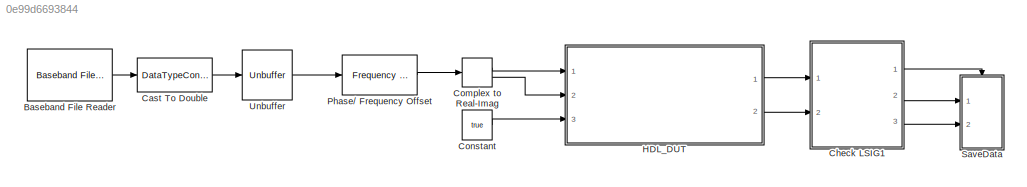
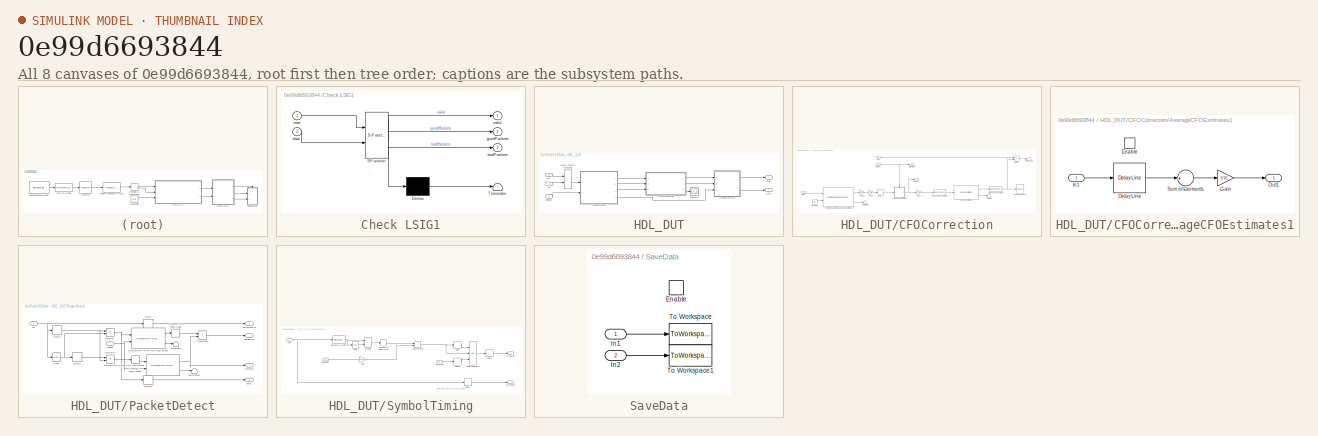
[diagram: thumbnail index - all 8 canvases of the model, root first then tree order]
MODEL slx_0e99d6693844
KIND model
CONFIG AbsTol = auto
CONFIG EnableMultiTasking = off
CONFIG FixedStep = auto
CONFIG InitFcn = Fs = 20e6;\nres = 1;\nSFDR = 100;\nN = ceil(log2(Fs/res));\n%trueRes = Fs/(2^N);\n%phaseInc = round(Fc*2^N/Fs);\nQAB = round((SFDR-12)/6);\nDither = N - QAB;\n\n%% LLTF\na = load('lltf.mat');\nlltfFlip = conj(flipud(a.LLTF(:, 1)));\n\nlltfFlip = lltfFlip./(max(abs(lltfFlip))) .* 2^0;\n\n
CONFIG MaxStep = auto
CONFIG MinStep = auto
CONFIG RelTol = 1e-3
CONFIG SampleTimeConstraint = Unconstrained
CONFIG Solver = FixedStepDiscrete
CONFIG SolverName = FixedStepDiscrete
CONFIG StartTime = 0.0
CONFIG StopTime = 0.04
BLOCK [Reference] Baseband File Reader  REF=commsource2/Baseband File Reader
  Ports = [0, 1]
  SourceBlock = commsource2/Baseband File Reader
  SourceProductBaseCode = CM
  SourceProductName = Communications System Toolbox
  SourceType = Baseband File Reader
BLOCK [DataTypeConversion] Cast To Double
  OutDataTypeStr = double
  RndMeth = Floor
  SaturateOnIntegerOverflow = off
BLOCK [SubSystem] Check LSIG1
  ErrorFcn = Stateflow.Translate.translate
  PermitHierarchicalResolution = ExplicitOnly
  Ports = [2, 3]
  RequestExecContextInheritance = off
  SFBlockType = MATLAB Function
  TreatAsAtomicUnit = on
BLOCK [Demux] Check LSIG1/ Demux 
  Outputs = 1
  Ports = [1, 1]
BLOCK [S-Function] Check LSIG1/ SFunction 
  EnableBusSupport = on
  FunctionName = sf_sfun
  PortCounts = [2 4]
  Ports = [2, 4]
  SFcnIsStateOwnerBlock = off
  SFunctionDeploymentMode = off
  Tag = Stateflow S-Function Receiver 1
BLOCK [Terminator] Check LSIG1/ Terminator 
BLOCK [Outport] Check LSIG1/badPackets
  IconDisplay = Port number
  Port = 3
BLOCK [Inport] Check LSIG1/data
  IconDisplay = Port number
  Port = 2
BLOCK [Outport] Check LSIG1/goodPackets
  IconDisplay = Port number
  Port = 2
BLOCK [Inport] Check LSIG1/start
  IconDisplay = Port number
BLOCK [Outport] Check LSIG1/valid
  IconDisplay = Port number
BLOCK [ComplexToRealImag] Complex to Real-Imag
  Ports = [1, 2]
BLOCK [Constant] Constant
  SampleTime = -1
  Value = true
BLOCK [SubSystem] HDL_DUT
  Ports = [3, 2]
  RequestExecContextInheritance = off
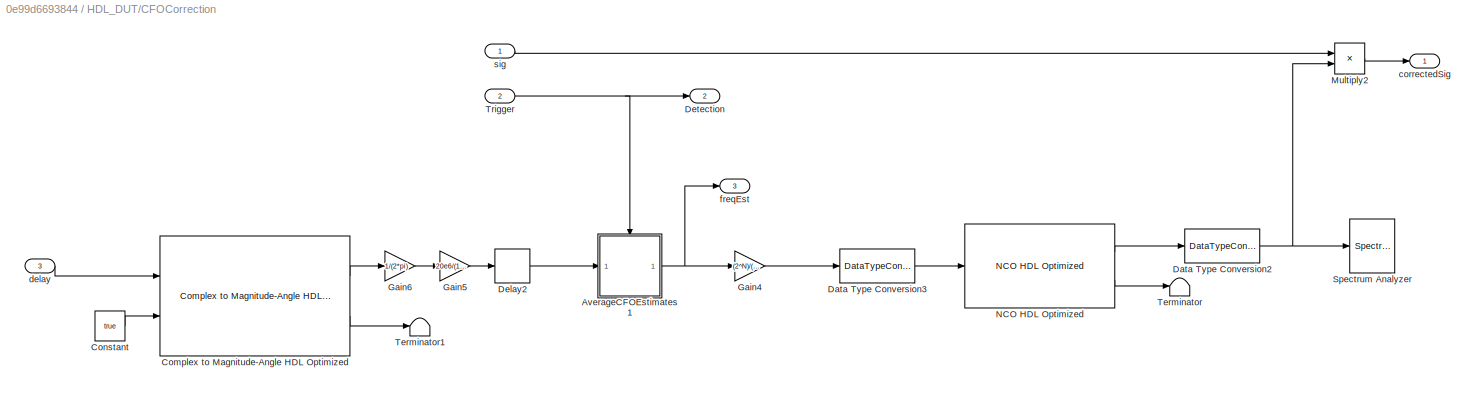
BLOCK [SubSystem] HDL_DUT/CFOCorrection
  Ports = [3, 3]
  RequestExecContextInheritance = off
BLOCK [SubSystem] HDL_DUT/CFOCorrection/AverageCFOEstimates1
  Ports = [1, 1, 1]
  RequestExecContextInheritance = off
BLOCK [Reference] HDL_DUT/CFOCorrection/AverageCFOEstimates1/Delay Line  REF=dspbuff3/Delay Line
  Ports = [1, 1]
  SourceBlock = dspbuff3/Delay Line
  SourceProductBaseCode = DS
  SourceProductName = DSP System Toolbox
  SourceType = Delay Line
  UserDataPersistent = on
BLOCK [EnablePort] HDL_DUT/CFOCorrection/AverageCFOEstimates1/Enable
  Ports = []
BLOCK [Gain] HDL_DUT/CFOCorrection/AverageCFOEstimates1/Gain
  Gain = 1/10
  OutDataTypeStr = Inherit: Inherit via internal rule
  ParamDataTypeStr = Inherit: Inherit via internal rule
  SaturateOnIntegerOverflow = off
BLOCK [Inport] HDL_DUT/CFOCorrection/AverageCFOEstimates1/In1
  IconDisplay = Port number
BLOCK [Outport] HDL_DUT/CFOCorrection/AverageCFOEstimates1/Out1
  IconDisplay = Port number
BLOCK [Sum] HDL_DUT/CFOCorrection/AverageCFOEstimates1/Sum of Elements
  InputSameDT = off
  Inputs = +
  OutDataTypeStr = Inherit: Inherit via internal rule
  Ports = [1, 1]
  SaturateOnIntegerOverflow = off
BLOCK [Reference] HDL_DUT/CFOCorrection/Complex to Magnitude-Angle HDL Optimized  REF=dspmathops/Complex to Magnitude-Angle
HDL Optimized
  Ports = [2, 2]
  SourceBlock = dspmathops/Complex to Magnitude-Angle\nHDL Optimized
  SourceProductBaseCode = DS
  SourceProductName = DSP System Toolbox
  SourceType = Complex to Magnitude-Angle HDL Optimized
BLOCK [Constant] HDL_DUT/CFOCorrection/Constant
  SampleTime = -1
  Value = true
BLOCK [DataTypeConversion] HDL_DUT/CFOCorrection/Data Type Conversion2
  OutDataTypeStr = double
  RndMeth = Floor
  SaturateOnIntegerOverflow = off
BLOCK [DataTypeConversion] HDL_DUT/CFOCorrection/Data Type Conversion3
  OutDataTypeStr = int32
  RndMeth = Floor
  SaturateOnIntegerOverflow = off
BLOCK [Delay] HDL_DUT/CFOCorrection/Delay2
  DelayLength = 32-20
  InputPortMap = u0
  Ports = [1, 1]
BLOCK [Outport] HDL_DUT/CFOCorrection/Detection
  IconDisplay = Port number
  Port = 2
BLOCK [Gain] HDL_DUT/CFOCorrection/Gain4
  Gain = (2^N)/(Fs)
  OutDataTypeStr = Inherit: Inherit via internal rule
  ParamDataTypeStr = Inherit: Inherit via internal rule
  SaturateOnIntegerOverflow = off
BLOCK [Gain] HDL_DUT/CFOCorrection/Gain5
  Gain = 20e6/(16)
  OutDataTypeStr = Inherit: Inherit via internal rule
  ParamDataTypeStr = Inherit: Inherit via internal rule
  SaturateOnIntegerOverflow = off
BLOCK [Gain] HDL_DUT/CFOCorrection/Gain6
  Gain = 1/(2*pi)
  OutDataTypeStr = Inherit: Inherit via internal rule
  ParamDataTypeStr = Inherit: Inherit via internal rule
  SaturateOnIntegerOverflow = off
BLOCK [Product] HDL_DUT/CFOCorrection/Multiply2
  InputSameDT = off
  OutDataTypeStr = Inherit: Inherit via internal rule
  Ports = [2, 1]
  RndMeth = Floor
  SaturateOnIntegerOverflow = off
BLOCK [Reference] HDL_DUT/CFOCorrection/NCO HDL Optimized  REF=dspsigops/NCO
HDL Optimized
  Ports = [1, 2]
  SourceBlock = dspsigops/NCO\nHDL Optimized
  SourceProductBaseCode = DS
  SourceProductName = DSP System Toolbox
  SourceType = NCO HDL Optimized
BLOCK [SpectrumAnalyzer] HDL_DUT/CFOCorrection/Spectrum Analyzer
  Commented = on
  Ports = [1]
  ScopeSpecificationString = spbscopes.SpectrumAnalyzerBlockCfg('CurrentConfiguration', extmgr.ConfigurationSet(extmgr.Configuration('Core','General UI',true),extmgr.Configuration('Core','Source UI',true),extmgr.Configuration('Sources','WiredSimulink',true),extmgr.Configuration('Visuals','Spectrum',true,'AxesProperties',struct('Color',{[0 0 0],[0 0 0]},'XColor',{[0.686274509803922 0.686274509803922 0.686274509803922],[0.68627...<+2143ch>
BLOCK [Terminator] HDL_DUT/CFOCorrection/Terminator
BLOCK [Terminator] HDL_DUT/CFOCorrection/Terminator1
BLOCK [Inport] HDL_DUT/CFOCorrection/Trigger
  IconDisplay = Port number
  Port = 2
BLOCK [Outport] HDL_DUT/CFOCorrection/correctedSig
  IconDisplay = Port number
BLOCK [Inport] HDL_DUT/CFOCorrection/delay
  IconDisplay = Port number
  Port = 3
BLOCK [Outport] HDL_DUT/CFOCorrection/freqEst
  IconDisplay = Port number
  Port = 3
BLOCK [Inport] HDL_DUT/CFOCorrection/sig
  IconDisplay = Port number
BLOCK [Scope] HDL_DUT/Freq Est
  Commented = on
  DefaultConfigurationName = spbscopes.TimeScopeBlockCfg
  Floating = off
  NumInputPorts = 1
  Ports = [1]
  ScopeSpecificationString = spbscopes.TimeScopeBlockCfg('CurrentConfiguration', extmgr.ConfigurationSet(extmgr.Configuration('Core','General UI',true,'FigureColor',[0.156862745098039 0.156862745098039 0.156862745098039]),extmgr.Configuration('Core','Source UI',true),extmgr.Configuration('Sources','WiredSimulink',true),extmgr.Configuration('Visuals','Time Domain',true),extmgr.Configuration('Tools','Plot Navigation',true),extm...<+65ch>
  UserDataPersistent = on
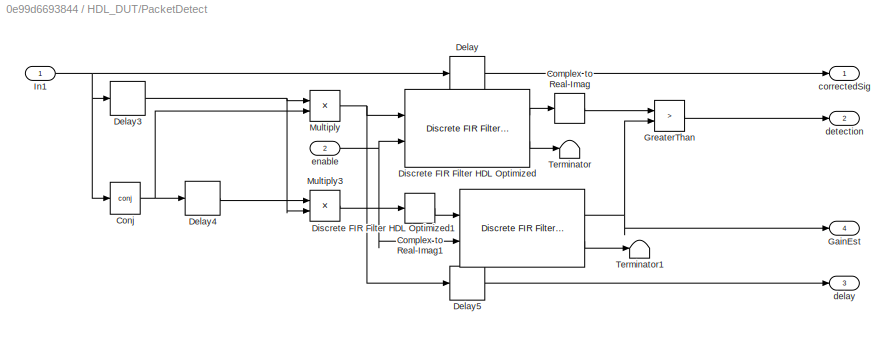
BLOCK [SubSystem] HDL_DUT/PacketDetect
  Ports = [2, 4]
  RequestExecContextInheritance = off
BLOCK [ComplexToRealImag] HDL_DUT/PacketDetect/Complex to Real-Imag
  Output = Real
  Ports = [1, 1]
BLOCK [ComplexToRealImag] HDL_DUT/PacketDetect/Complex to Real-Imag1
  Output = Real
  Ports = [1, 1]
BLOCK [Math] HDL_DUT/PacketDetect/Conj
  Operator = conj
  Ports = [1, 1]
BLOCK [Delay] HDL_DUT/PacketDetect/Delay
  DelayLength = 36
  InputPortMap = u0
  Ports = [1, 1]
BLOCK [Delay] HDL_DUT/PacketDetect/Delay3
  DelayLength = 16
  InputPortMap = u0
  Ports = [1, 1]
BLOCK [Delay] HDL_DUT/PacketDetect/Delay4
  DelayLength = 16
  InputPortMap = u0
  Ports = [1, 1]
BLOCK [Delay] HDL_DUT/PacketDetect/Delay5
  DelayLength = 36
  InputPortMap = u0
  Ports = [1, 1]
BLOCK [Reference] HDL_DUT/PacketDetect/Discrete FIR Filter HDL Optimized  REF=dsphdlfiltering/Discrete FIR Filter
HDL Optimized
  Ports = [2, 2]
  SourceBlock = dsphdlfiltering/Discrete FIR Filter\nHDL Optimized
  SourceProductBaseCode = DS
  SourceProductName = DSP System Toolbox
  SourceType = Discrete FIR Filter HDL Optimized
BLOCK [Reference] HDL_DUT/PacketDetect/Discrete FIR Filter HDL Optimized1  REF=dsphdlfiltering/Discrete FIR Filter
HDL Optimized
  Ports = [2, 2]
  SourceBlock = dsphdlfiltering/Discrete FIR Filter\nHDL Optimized
  SourceProductBaseCode = DS
  SourceProductName = DSP System Toolbox
  SourceType = Discrete FIR Filter HDL Optimized
BLOCK [Outport] HDL_DUT/PacketDetect/GainEst
  IconDisplay = Port number
  Port = 4
BLOCK [RelationalOperator] HDL_DUT/PacketDetect/GreaterThan
  InputSameDT = off
  Operator = >
  OutDataTypeStr = boolean
  Ports = [2, 1]
  RndMeth = Simplest
BLOCK [Inport] HDL_DUT/PacketDetect/In1
  IconDisplay = Port number
BLOCK [Product] HDL_DUT/PacketDetect/Multiply
  InputSameDT = off
  OutDataTypeStr = Inherit: Inherit via internal rule
  Ports = [2, 1]
  RndMeth = Floor
  SaturateOnIntegerOverflow = off
BLOCK [Product] HDL_DUT/PacketDetect/Multiply3
  InputSameDT = off
  OutDataTypeStr = Inherit: Inherit via internal rule
  Ports = [2, 1]
  RndMeth = Floor
  SaturateOnIntegerOverflow = off
BLOCK [Terminator] HDL_DUT/PacketDetect/Terminator
BLOCK [Terminator] HDL_DUT/PacketDetect/Terminator1
BLOCK [Outport] HDL_DUT/PacketDetect/correctedSig
  IconDisplay = Port number
BLOCK [Outport] HDL_DUT/PacketDetect/delay
  IconDisplay = Port number
  Port = 3
BLOCK [Outport] HDL_DUT/PacketDetect/detection
  IconDisplay = Port number
  Port = 2
BLOCK [Inport] HDL_DUT/PacketDetect/enable
  IconDisplay = Port number
  Port = 2
BLOCK [RealImagToComplex] HDL_DUT/Real-Imag to Complex
  Ports = [2, 1]
BLOCK [SubSystem] HDL_DUT/SymbolTiming
  Ports = [3, 2]
  RequestExecContextInheritance = off
BLOCK [ComplexToRealImag] HDL_DUT/SymbolTiming/Complex to Real-Imag
  Output = Real
  Ports = [1, 1]
BLOCK [Math] HDL_DUT/SymbolTiming/Conj
  Operator = conj
  Ports = [1, 1]
BLOCK [Delay] HDL_DUT/SymbolTiming/Delay
  DelayLength = 64
  InputPortMap = u0
  Ports = [1, 1]
BLOCK [Delay] HDL_DUT/SymbolTiming/Delay1
  DelayLength = 64+80+64
  InputPortMap = u0
  Ports = [1, 1]
BLOCK [Delay] HDL_DUT/SymbolTiming/Delay2
  DelayLength = 1
  InputPortMap = u0
  Ports = [1, 1]
BLOCK [Delay] HDL_DUT/SymbolTiming/Delay4
  DelayLength = 160
  InputPortMap = u0
  Ports = [1, 1]
BLOCK [DiscreteFir] HDL_DUT/SymbolTiming/Discrete FIR Filter
  Coefficients = lltfFlip(1:80).'
  InputPortMap = u0
  OutputPortMap = o0
  Ports = [1, 1]
BLOCK [Gain] HDL_DUT/SymbolTiming/Gain
  Gain = 160*16/(32*1.0)
  OutDataTypeStr = Inherit: Inherit via internal rule
  ParamDataTypeStr = Inherit: Inherit via internal rule
  SaturateOnIntegerOverflow = off
BLOCK [RelationalOperator] HDL_DUT/SymbolTiming/GreaterThan
  InputSameDT = off
  Operator = >
  OutDataTypeStr = boolean
  Ports = [2, 1]
  RndMeth = Simplest
BLOCK [Outport] HDL_DUT/SymbolTiming/LLTFStart
  IconDisplay = Port number
BLOCK [Logic] HDL_DUT/SymbolTiming/Logical Operator
  AllPortsSameDT = off
  Inputs = 3
  OutDataTypeStr = boolean
  Ports = [3, 1]
BLOCK [Product] HDL_DUT/SymbolTiming/Multiply
  InputSameDT = off
  OutDataTypeStr = Inherit: Inherit via internal rule
  Ports = [2, 1]
  RndMeth = Floor
  SaturateOnIntegerOverflow = off
BLOCK [Inport] HDL_DUT/SymbolTiming/detection
  IconDisplay = Port number
  Port = 2
BLOCK [Inport] HDL_DUT/SymbolTiming/sig
  IconDisplay = Port number
BLOCK [Inport] HDL_DUT/SymbolTiming/sigGainEst
  IconDisplay = Port number
  Port = 3
BLOCK [Outport] HDL_DUT/SymbolTiming/syncedData
  IconDisplay = Port number
  Port = 2
BLOCK [Inport] HDL_DUT/enable
  IconDisplay = Port number
  Port = 3
BLOCK [Inport] HDL_DUT/in1
  IconDisplay = Port number
BLOCK [Inport] HDL_DUT/in2
  IconDisplay = Port number
  Port = 2
BLOCK [Outport] HDL_DUT/start
  IconDisplay = Port number
BLOCK [Outport] HDL_DUT/sync
  IconDisplay = Port number
  Port = 2
BLOCK [Reference] Phase// Frequency Offset  REF=commrflib2/Phase//
Frequency
Offset
  Ports = [1, 1]
  SourceBlock = commrflib2/Phase//\nFrequency\nOffset
  SourceProductBaseCode = CM
  SourceProductName = Communications System Toolbox
  SourceType = Phase/Frequency Offset
BLOCK [SubSystem] SaveData
  Ports = [2, 0, 1]
  RequestExecContextInheritance = off
BLOCK [EnablePort] SaveData/Enable
  Ports = []
BLOCK [Inport] SaveData/In1
  IconDisplay = Port number
BLOCK [Inport] SaveData/In2
  IconDisplay = Port number
  Port = 2
BLOCK [ToWorkspace] SaveData/To Workspace
  FixptAsFi = on
  MaxDataPoints = inf
  Ports = [1]
  SampleTime = -1
  Save2DSignal = 2-D array (concatenate along first dimension)
  VariableName = goodpackets
BLOCK [ToWorkspace] SaveData/To Workspace1
  FixptAsFi = on
  MaxDataPoints = inf
  Ports = [1]
  SampleTime = -1
  Save2DSignal = 2-D array (concatenate along first dimension)
  VariableName = badpackets
BLOCK [Unbuffer] Unbuffer
  Ports = [1, 1]
ANNOTATION HDL_DUT/SymbolTiming: Align data with LLTF start pulse
LINE Baseband File Reader:1 -> Cast To Double:1
LINE Cast To Double:1 -> Unbuffer:1
LINE Check LSIG1:1 -> SaveData:enable
LINE Check LSIG1:2 -> SaveData:1
LINE Check LSIG1:3 -> SaveData:2
LINE Complex to Real-Imag:1 -> HDL_DUT:1
LINE Complex to Real-Imag:2 -> HDL_DUT:2
LINE Constant:1 -> HDL_DUT:3
LINE HDL_DUT/CFOCorrection/AverageCFOEstimates1/Delay Line:1 -> HDL_DUT/CFOCorrection/AverageCFOEstimates1/Sum of Elements:1
LINE HDL_DUT/CFOCorrection/AverageCFOEstimates1/Gain:1 -> HDL_DUT/CFOCorrection/AverageCFOEstimates1/Out1:1
LINE HDL_DUT/CFOCorrection/AverageCFOEstimates1/In1:1 -> HDL_DUT/CFOCorrection/AverageCFOEstimates1/Delay Line:1
LINE HDL_DUT/CFOCorrection/AverageCFOEstimates1/Sum of Elements:1 -> HDL_DUT/CFOCorrection/AverageCFOEstimates1/Gain:1
NET HDL_DUT/CFOCorrection/AverageCFOEstimates1:1 -> HDL_DUT/CFOCorrection/Gain4:1, HDL_DUT/CFOCorrection/freqEst:1
LINE HDL_DUT/CFOCorrection/Complex to Magnitude-Angle HDL Optimized:1 -> HDL_DUT/CFOCorrection/Gain6:1
LINE HDL_DUT/CFOCorrection/Complex to Magnitude-Angle HDL Optimized:2 -> HDL_DUT/CFOCorrection/Terminator1:1
LINE HDL_DUT/CFOCorrection/Constant:1 -> HDL_DUT/CFOCorrection/Complex to Magnitude-Angle HDL Optimized:2
NET HDL_DUT/CFOCorrection/Data Type Conversion2:1 -> HDL_DUT/CFOCorrection/Multiply2:2, HDL_DUT/CFOCorrection/Spectrum Analyzer:1
LINE HDL_DUT/CFOCorrection/Data Type Conversion3:1 -> HDL_DUT/CFOCorrection/NCO HDL Optimized:1
LINE HDL_DUT/CFOCorrection/Delay2:1 -> HDL_DUT/CFOCorrection/AverageCFOEstimates1:1
LINE HDL_DUT/CFOCorrection/Gain4:1 -> HDL_DUT/CFOCorrection/Data Type Conversion3:1
LINE HDL_DUT/CFOCorrection/Gain5:1 -> HDL_DUT/CFOCorrection/Delay2:1
LINE HDL_DUT/CFOCorrection/Gain6:1 -> HDL_DUT/CFOCorrection/Gain5:1
LINE HDL_DUT/CFOCorrection/Multiply2:1 -> HDL_DUT/CFOCorrection/correctedSig:1
LINE HDL_DUT/CFOCorrection/NCO HDL Optimized:1 -> HDL_DUT/CFOCorrection/Data Type Conversion2:1
LINE HDL_DUT/CFOCorrection/NCO HDL Optimized:2 -> HDL_DUT/CFOCorrection/Terminator:1
NET HDL_DUT/CFOCorrection/Trigger:1 -> HDL_DUT/CFOCorrection/AverageCFOEstimates1:enable, HDL_DUT/CFOCorrection/Detection:1
LINE HDL_DUT/CFOCorrection/delay:1 -> HDL_DUT/CFOCorrection/Complex to Magnitude-Angle HDL Optimized:1
LINE HDL_DUT/CFOCorrection/sig:1 -> HDL_DUT/CFOCorrection/Multiply2:1
LINE HDL_DUT/CFOCorrection:1 -> HDL_DUT/SymbolTiming:1
LINE HDL_DUT/CFOCorrection:2 -> HDL_DUT/SymbolTiming:2
LINE HDL_DUT/CFOCorrection:3 -> HDL_DUT/Freq Est:1
LINE HDL_DUT/PacketDetect/Complex to Real-Imag1:1 -> HDL_DUT/PacketDetect/Discrete FIR Filter HDL Optimized1:1
LINE HDL_DUT/PacketDetect/Complex to Real-Imag:1 -> HDL_DUT/PacketDetect/GreaterThan:1
NET HDL_DUT/PacketDetect/Conj:1 -> HDL_DUT/PacketDetect/Delay4:1, HDL_DUT/PacketDetect/Multiply:2
NET HDL_DUT/PacketDetect/Delay3:1 -> HDL_DUT/PacketDetect/Multiply3:2, HDL_DUT/PacketDetect/Multiply:1
LINE HDL_DUT/PacketDetect/Delay4:1 -> HDL_DUT/PacketDetect/Multiply3:1
LINE HDL_DUT/PacketDetect/Delay5:1 -> HDL_DUT/PacketDetect/delay:1
LINE HDL_DUT/PacketDetect/Delay:1 -> HDL_DUT/PacketDetect/correctedSig:1
NET HDL_DUT/PacketDetect/Discrete FIR Filter HDL Optimized1:1 -> HDL_DUT/PacketDetect/GainEst:1, HDL_DUT/PacketDetect/GreaterThan:2
LINE HDL_DUT/PacketDetect/Discrete FIR Filter HDL Optimized1:2 -> HDL_DUT/PacketDetect/Terminator1:1
LINE HDL_DUT/PacketDetect/Discrete FIR Filter HDL Optimized:1 -> HDL_DUT/PacketDetect/Complex to Real-Imag:1
LINE HDL_DUT/PacketDetect/Discrete FIR Filter HDL Optimized:2 -> HDL_DUT/PacketDetect/Terminator:1
LINE HDL_DUT/PacketDetect/GreaterThan:1 -> HDL_DUT/PacketDetect/detection:1
NET HDL_DUT/PacketDetect/In1:1 -> HDL_DUT/PacketDetect/Conj:1, HDL_DUT/PacketDetect/Delay3:1, HDL_DUT/PacketDetect/Delay:1
LINE HDL_DUT/PacketDetect/Multiply3:1 -> HDL_DUT/PacketDetect/Complex to Real-Imag1:1
NET HDL_DUT/PacketDetect/Multiply:1 -> HDL_DUT/PacketDetect/Delay5:1, HDL_DUT/PacketDetect/Discrete FIR Filter HDL Optimized:1
NET HDL_DUT/PacketDetect/enable:1 -> HDL_DUT/PacketDetect/Discrete FIR Filter HDL Optimized1:2, HDL_DUT/PacketDetect/Discrete FIR Filter HDL Optimized:2
LINE HDL_DUT/PacketDetect:1 -> HDL_DUT/CFOCorrection:1
LINE HDL_DUT/PacketDetect:2 -> HDL_DUT/CFOCorrection:2
LINE HDL_DUT/PacketDetect:3 -> HDL_DUT/CFOCorrection:3
LINE HDL_DUT/PacketDetect:4 -> HDL_DUT/SymbolTiming:3
LINE HDL_DUT/Real-Imag to Complex:1 -> HDL_DUT/PacketDetect:1
LINE HDL_DUT/SymbolTiming/Complex to Real-Imag:1 -> HDL_DUT/SymbolTiming/GreaterThan:1
LINE HDL_DUT/SymbolTiming/Conj:1 -> HDL_DUT/SymbolTiming/Multiply:2
LINE HDL_DUT/SymbolTiming/Delay1:1 -> HDL_DUT/SymbolTiming/Logical Operator:3
LINE HDL_DUT/SymbolTiming/Delay2:1 -> HDL_DUT/SymbolTiming/LLTFStart:1
LINE HDL_DUT/SymbolTiming/Delay4:1 -> HDL_DUT/SymbolTiming/syncedData:1
LINE HDL_DUT/SymbolTiming/Delay:1 -> HDL_DUT/SymbolTiming/Logical Operator:1
NET HDL_DUT/SymbolTiming/Discrete FIR Filter:1 -> HDL_DUT/SymbolTiming/Conj:1, HDL_DUT/SymbolTiming/Multiply:1
LINE HDL_DUT/SymbolTiming/Gain:1 -> HDL_DUT/SymbolTiming/GreaterThan:2
NET HDL_DUT/SymbolTiming/GreaterThan:1 -> HDL_DUT/SymbolTiming/Delay:1, HDL_DUT/SymbolTiming/Logical Operator:2
LINE HDL_DUT/SymbolTiming/Logical Operator:1 -> HDL_DUT/SymbolTiming/Delay2:1
LINE HDL_DUT/SymbolTiming/Multiply:1 -> HDL_DUT/SymbolTiming/Complex to Real-Imag:1
LINE HDL_DUT/SymbolTiming/detection:1 -> HDL_DUT/SymbolTiming/Delay1:1
NET HDL_DUT/SymbolTiming/sig:1 -> HDL_DUT/SymbolTiming/Delay4:1, HDL_DUT/SymbolTiming/Discrete FIR Filter:1
LINE HDL_DUT/SymbolTiming/sigGainEst:1 -> HDL_DUT/SymbolTiming/Gain:1
LINE HDL_DUT/SymbolTiming:1 -> HDL_DUT/start:1
LINE HDL_DUT/SymbolTiming:2 -> HDL_DUT/sync:1
LINE HDL_DUT/enable:1 -> HDL_DUT/PacketDetect:2
LINE HDL_DUT/in1:1 -> HDL_DUT/Real-Imag to Complex:1
LINE HDL_DUT/in2:1 -> HDL_DUT/Real-Imag to Complex:2
LINE HDL_DUT:1 -> Check LSIG1:1
LINE HDL_DUT:2 -> Check LSIG1:2
LINE Phase// Frequency Offset:1 -> Complex to Real-Imag:1
LINE SaveData/In1:1 -> SaveData/To Workspace:1
LINE SaveData/In2:1 -> SaveData/To Workspace1:1
LINE Unbuffer:1 -> Phase// Frequency Offset:1
note: NET lines group one-source signal fan-out (src -> all destinations, sorted); 1:1 wires keep LINE
CHART Check LSIG1 states=1 transitions=1
  STATE_LABEL 'eML_blk_kernel()'
  STATE_LABEL "SCRIPT:\nfunction [valid,goodPackets,badPackets] = fcn(start,data)\n%#codegen\n% coder.extrinsic('offline');\n\npersistent buff counter cfgRec largerCount chanEst noiseVar cfgNonHT numDataSym\npersistent goodPacketsCount badPacketsCount\nN = 160+80; \nM = 1e6;\n\nif isempty(buff)\n    buff = complex(zeros(M,1));\n    counter = int16(N+1);\n    cfgRec = wlanRecoveryConfig('EqualizationMethod', 'ZF');\n    larger...<+2075ch>"
